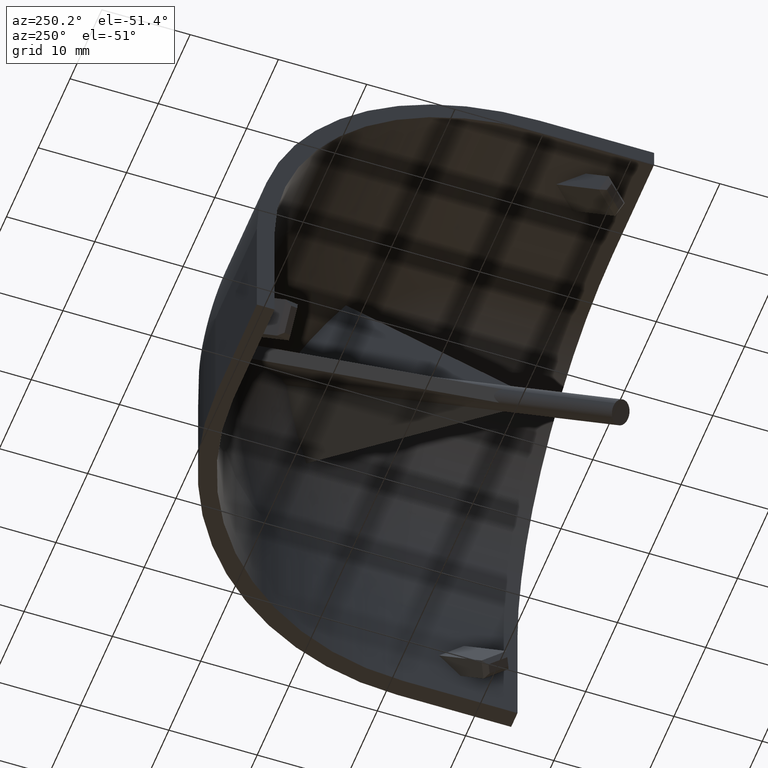
[diagram: clean part render]
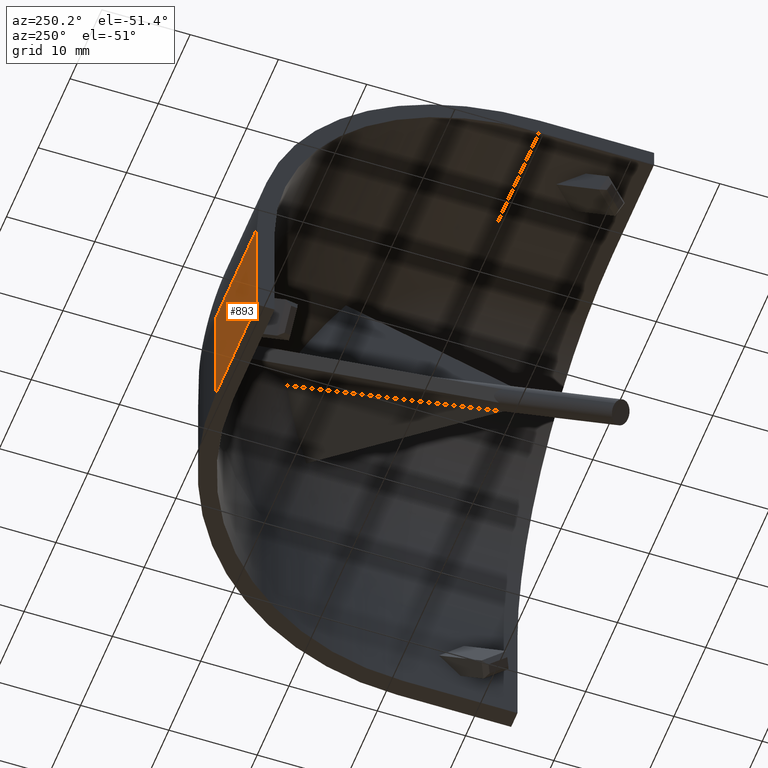
[diagram: same view with one face highlighted and labeled with its STEP entity id]
A machine part, auxiliary view. The second image highlights one B-rep face of the part: STEP entity #893.
In plain terms, the highlighted planar face has unit normal (0, -1, -0).
Its self-contained STEP definition (entity closure, byte-faithful):
#24=PLANE($,#979);
#78=LINE($,#1351,#177);
#92=LINE($,#1386,#191);
#107=LINE($,#1422,#206);
#109=LINE($,#1426,#208);
#177=VECTOR($,#1077,12.9999999999998);
#191=VECTOR($,#1107,13.);
#206=VECTOR($,#1142,12.9999999999998);
#208=VECTOR($,#1148,12.9999999999999);
#286=FACE_OUTER_BOUND($,#345,.T.);
#345=EDGE_LOOP($,(#716,#717,#718,#719));
#436=VERTEX_POINT($,#1348);
#437=VERTEX_POINT($,#1350);
#450=VERTEX_POINT($,#1385);
#461=VERTEX_POINT($,#1418);
#518=EDGE_CURVE($,#436,#437,#78,.T.);
#536=EDGE_CURVE($,#437,#450,#92,.T.);
#555=EDGE_CURVE($,#461,#450,#107,.T.);
#557=EDGE_CURVE($,#436,#461,#109,.T.);
#716=ORIENTED_EDGE($,*,*,#518,.F.);
#717=ORIENTED_EDGE($,*,*,#557,.T.);
#718=ORIENTED_EDGE($,*,*,#555,.T.);
#719=ORIENTED_EDGE($,*,*,#536,.F.);
#893=ADVANCED_FACE($,(#286),#24,.F.);
#979=AXIS2_PLACEMENT_3D($,#1427,#1149,#1150);
#1077=DIRECTION($,(0.,-1.,0.));
#1107=DIRECTION($,(1.,0.,0.));
#1142=DIRECTION($,(0.,-1.,0.));
#1148=DIRECTION($,(1.,0.,0.));
#1149=DIRECTION('center_axis',(0.,0.,1.));
#1150=DIRECTION('ref_axis',(1.,0.,0.));
#1348=CARTESIAN_POINT('',(0.,12.9999999999995,-44.9999999999999));
#1350=CARTESIAN_POINT('',(0.,-3.05311331771918E-013,-44.9999999999998));
#1351=CARTESIAN_POINT($,(0.,12.9999999999995,-44.9999999999999));
#1385=CARTESIAN_POINT('',(13.,-2.22044604925031E-013,-44.9999999999999));
#1386=CARTESIAN_POINT($,(-7.105427357601E-015,-6.93889390390723E-013,-44.9999999999996));
#1418=CARTESIAN_POINT('',(12.9999999999999,12.9999999999996,-45.));
#1422=CARTESIAN_POINT($,(12.9999999999999,12.9999999999996,-45.));
#1426=CARTESIAN_POINT($,(0.,12.9999999999991,-44.9999999999997));
#1427=CARTESIAN_POINT('Origin',(-55.2177507691142,12.9999999999991,-44.9999999999997));